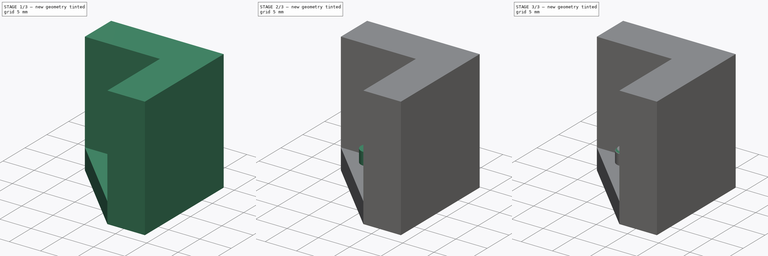
[diagram: build sequence overview — one tinted view per stage of 3, left to right]
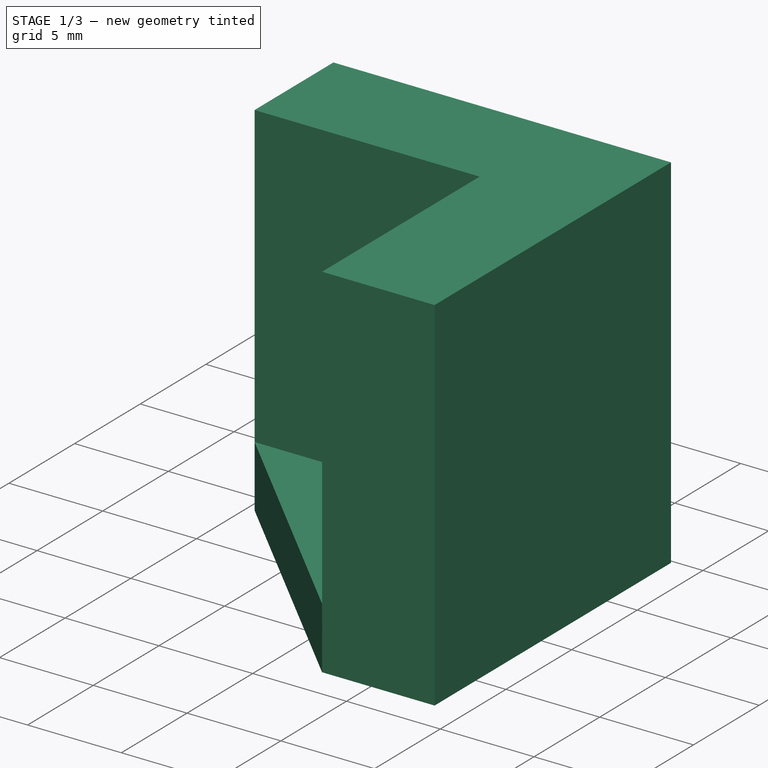
[diagram: stage 1 of 3 — iso view after this stage's code; geometry added in this stage tinted green]
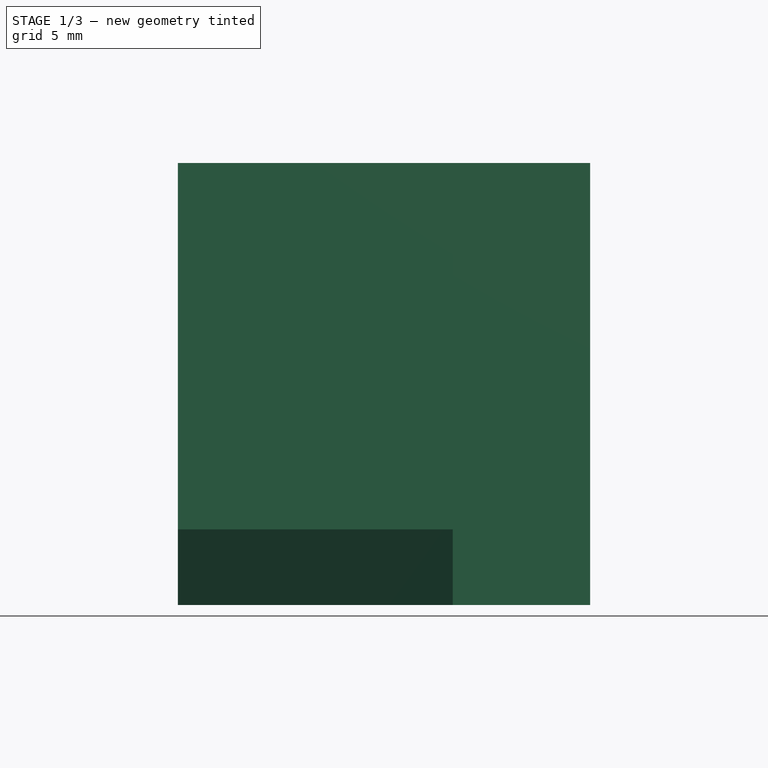
[diagram: stage 1 of 3 — front view after this stage's code; geometry added in this stage tinted green]
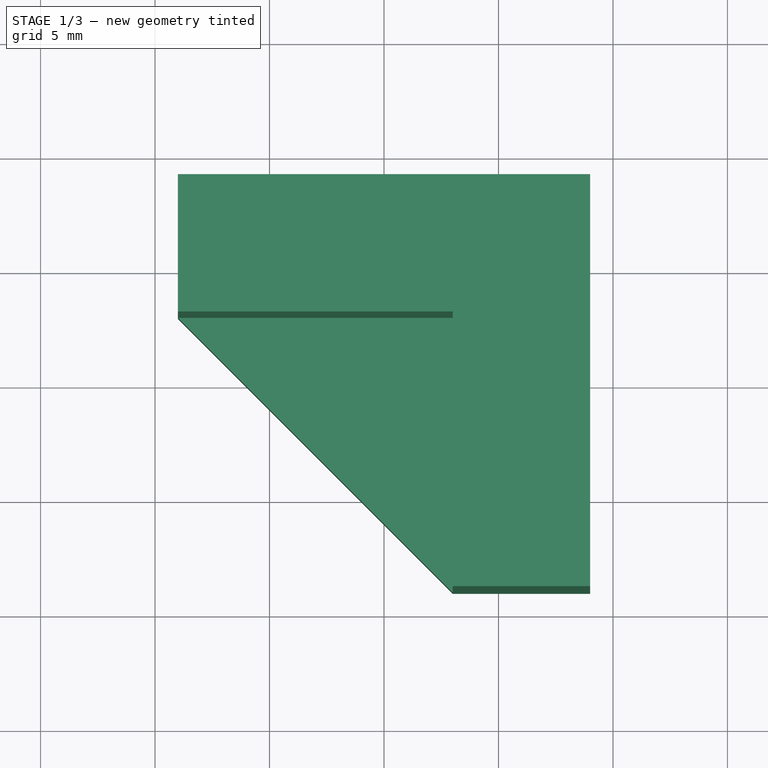
[diagram: stage 1 of 3 — top view after this stage's code; geometry added in this stage tinted green]
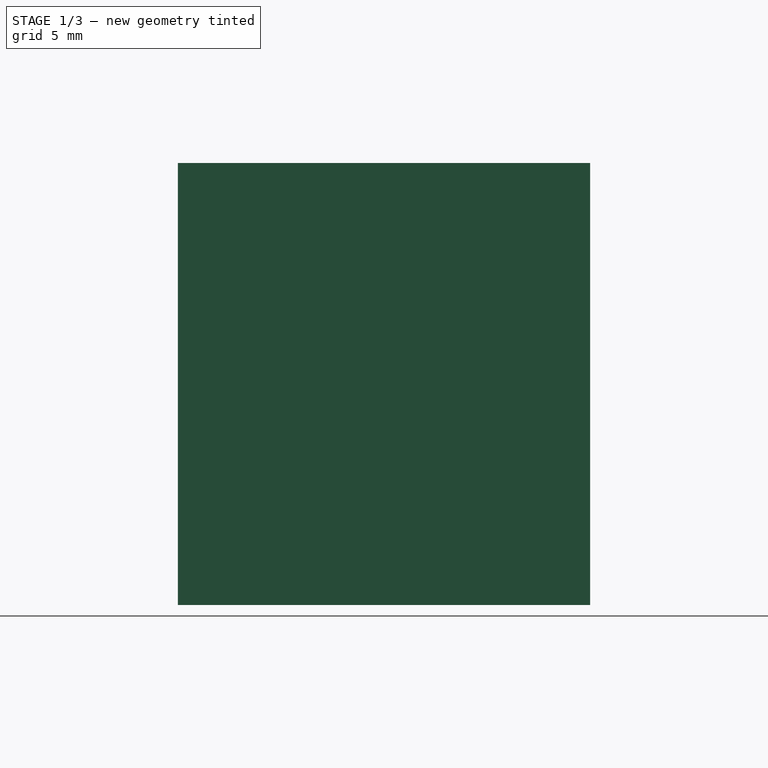
[diagram: stage 1 of 3 — right view after this stage's code; geometry added in this stage tinted green]
FCSTD DOCUMENT  (FreeCAD 0.21R33668 +26 (Git))
Label: magnet_press_jig_top
License: All rights reserved
LicenseURL: https://en.wikipedia.org/wiki/All_rights_reserved
objects: Sketcher::SketchObject×4, PartDesign::Pad×2, PartDesign::Pocket×2, PartDesign::Plane×1, PartDesign::Chamfer×1, PartDesign::Body×1
note: 16 computed .brp shape members not serialized (recipe doc carries the construction recipe); baked Part::Feature solids carry a one-line shape summary decoded from their .brp

FEATURE [Sketcher::SketchObject] Sketch
  FullyConstrained = true
  MapMode = 5
  Support = -> [XY_Plane]
  sketch-geometry (9):
    g0: LineSegment StartX=-9 StartY=3 StartZ=0 EndX=-9 EndY=9 EndZ=0
    g1: LineSegment StartX=-9 StartY=9 StartZ=0 EndX=9 EndY=9 EndZ=0
    g2: LineSegment StartX=9 StartY=9 StartZ=0 EndX=9 EndY=-9 EndZ=0
    g3: LineSegment StartX=9 StartY=-9 StartZ=0 EndX=3 EndY=-9 EndZ=0
    g4: GeomPoint X=0 Y=0 Z=0
    g5: LineSegment StartX=-9 StartY=3 StartZ=0 EndX=3 EndY=-9 EndZ=0
    g6: LineSegment StartX=-9 StartY=9 StartZ=0 EndX=0 EndY=0 EndZ=0
    g7: LineSegment StartX=0 StartY=0 StartZ=0 EndX=9 EndY=9 EndZ=0
    g8: LineSegment StartX=0 StartY=0 StartZ=0 EndX=9 EndY=-9 EndZ=0
  constraints (22):
    c: Coincident(g0,g1)
    c: Coincident(g1,g2)
    c: Coincident(g2,g3)
    c: Horizontal(g1)
    c: Horizontal(g3)
    c: Vertical(g0)
    c: Vertical(g2)
    c: Coincident(g4,g-1)
    c: DistanceX(g1,g1) = 18
    c: Coincident(g0,g5)
    c: Coincident(g3,g5)
    c: Equal(g3,g0)
    c: DistanceX(g3,g3) = 6
    c: Equal(g2,g1)
    c: Coincident(g6,g0)
    c: Coincident(g6,g4)
    c: Coincident(g7,g6)
    c: Coincident(g7,g1)
    c: Equal(g7,g6)
    c: Coincident(g8,g6)
    c: Coincident(g8,g2)
    c: Equal(g8,g7)
FEATURE [PartDesign::Pad] Pad
  Direction = (0,0,1)
  Length = 19.3
  Length2 = 10
  Profile = -> Sketch
  ReferenceAxis = -> Sketch [N_Axis]
  Type = 0
FEATURE [PartDesign::Plane] DatumPlane
  AttachmentOffset = pos=(0,0,3.3) rot=(0,0,1;0rad)
  Length = 60
  MapMode = 5
  Placement = pos=(0,0,3.3) rot=(0,0,1;0rad)
  ResizeMode = 0
  Support = -> [XY_Plane]
  Width = 60
FEATURE [Sketcher::SketchObject] Sketch001
  FullyConstrained = true
  MapMode = 5
  Placement = pos=(0,0,3.3) rot=(0,0,1;0rad)
  Support = -> [DatumPlane]
  sketch-geometry (3):
    g0: LineSegment StartX=-9 StartY=3 StartZ=0 EndX=3 EndY=3 EndZ=0
    g1: LineSegment StartX=3 StartY=3 StartZ=0 EndX=3 EndY=-9 EndZ=0
    g2: LineSegment StartX=3 StartY=-9 StartZ=0 EndX=-9 EndY=3 EndZ=0
  constraints (9):
    c: Horizontal(g0)
    c: Coincident(g1,g0)
    c: Vertical(g1)
    c: Coincident(g2,g1)
    c: Coincident(g2,g0)
    c: DistanceX(g0,g0) = 12
    c: Equal(g0,g1)
    c: DistanceY(g-1,g0) = 3
    c: DistanceX(g-1,g0) = 3
FEATURE [PartDesign::Pocket] Pocket
  BaseFeature = -> Pad
  Direction = (0,0,-1)
  Length = 5
  Length2 = 5
  Profile = -> Sketch001
  ReferenceAxis = -> Sketch001 [N_Axis]
  Reversed = true
  Type = 1
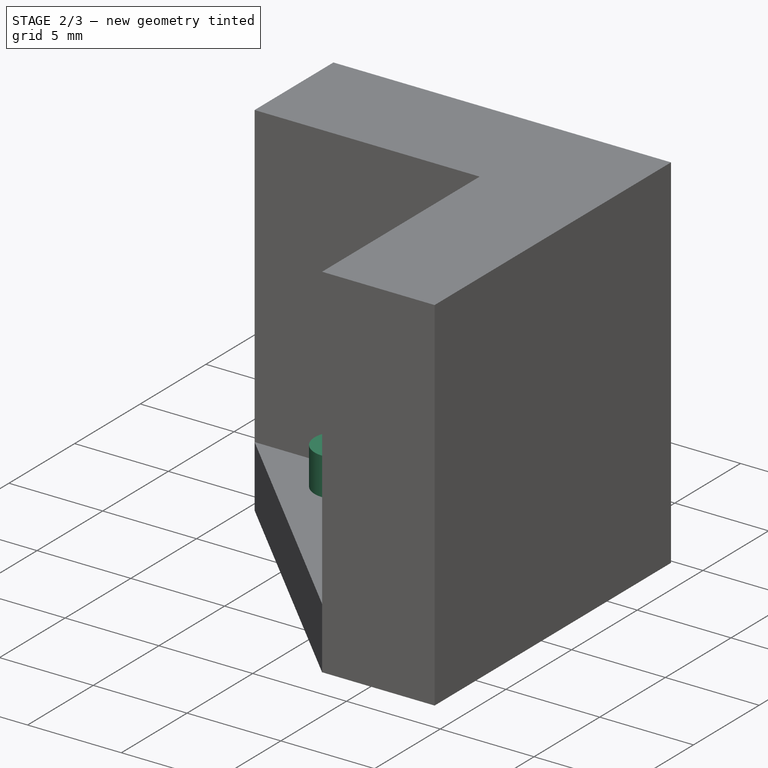
[diagram: stage 2 of 3 — iso view after this stage's code; geometry added in this stage tinted green]
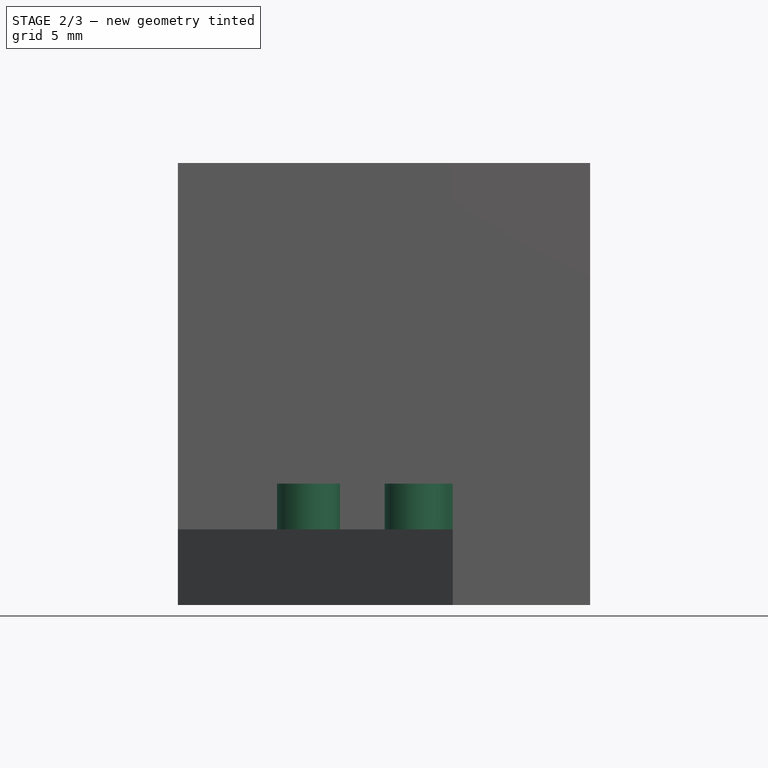
[diagram: stage 2 of 3 — front view after this stage's code; geometry added in this stage tinted green]
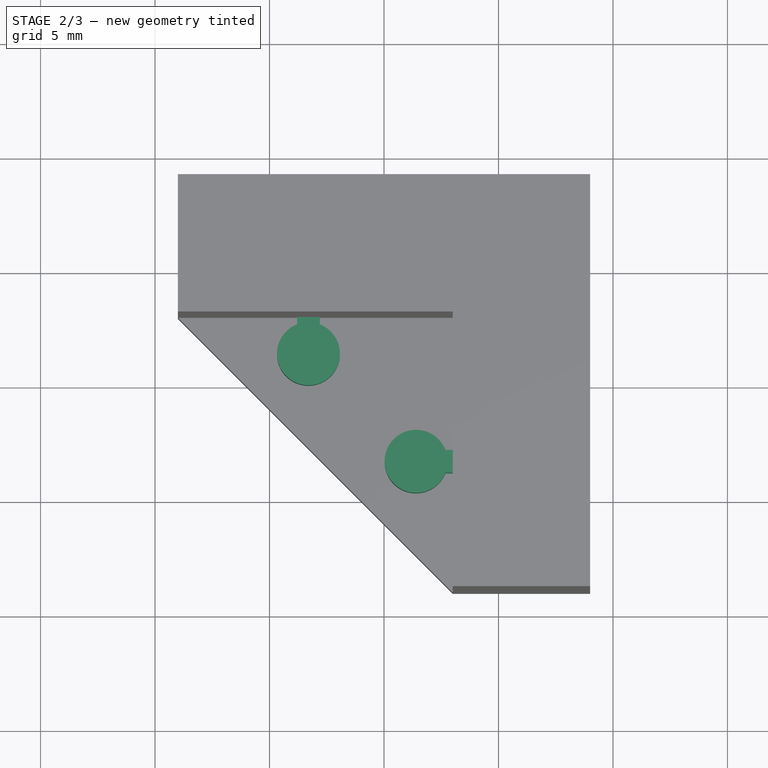
[diagram: stage 2 of 3 — top view after this stage's code; geometry added in this stage tinted green]
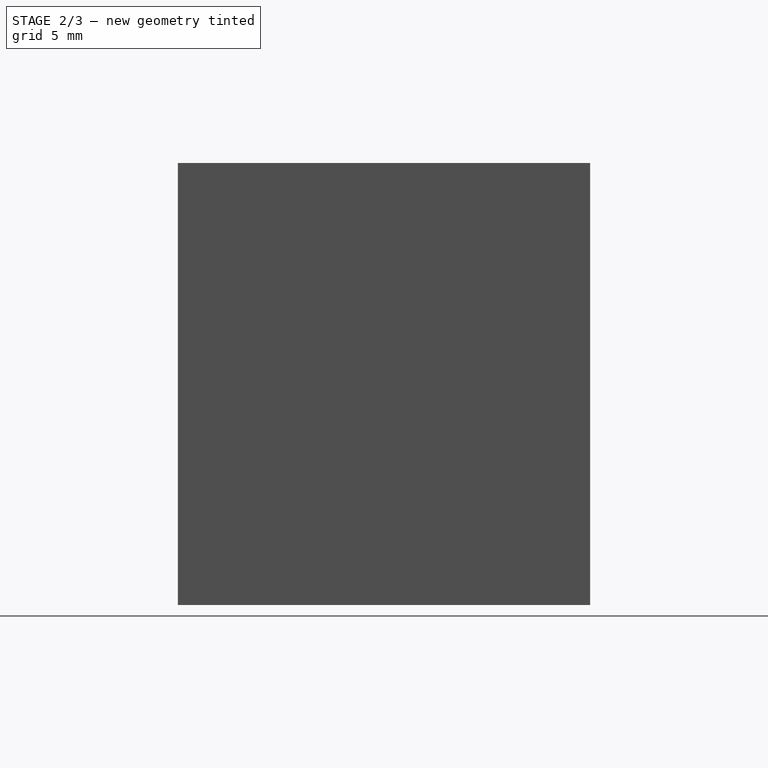
[diagram: stage 2 of 3 — right view after this stage's code; geometry added in this stage tinted green]
FEATURE [Sketcher::SketchObject] Sketch002
  FullyConstrained = true
  MapMode = 5
  Placement = pos=(0,0,3.3) rot=(0,0,1;0rad)
  Support = -> [DatumPlane]
  sketch-geometry (11):
    g0: ArcOfCircle CenterX=-3.3 CenterY=1.4 CenterZ=0 NormalX=0 NormalY=0 NormalZ=1 AngleXU=0 Radius=1.375 StartAngle=1.94296 EndAngle=7.48181
    g1: ArcOfCircle CenterX=1.4 CenterY=-3.3 CenterZ=0 NormalX=0 NormalY=0 NormalZ=1 AngleXU=0 Radius=1.375 StartAngle=0.372169 EndAngle=5.91102
    g2: LineSegment StartX=-3.3 StartY=1.4 StartZ=0 EndX=1.4 EndY=-3.3 EndZ=0
    g3: LineSegment StartX=-0.95 StartY=-0.95 StartZ=0 EndX=-1e-16 EndY=0 EndZ=0
    g4: GeomPoint X=3 Y=3 Z=0
    g5: LineSegment StartX=-3.8 StartY=2.68087 StartZ=0 EndX=-3.8 EndY=3 EndZ=0
    g6: LineSegment StartX=-2.8 StartY=2.68087 StartZ=0 EndX=-2.8 EndY=3 EndZ=0
    g7: LineSegment StartX=-3.8 StartY=3 StartZ=0 EndX=-2.8 EndY=3 EndZ=0
    g8: LineSegment StartX=2.68087 StartY=-2.8 StartZ=0 EndX=3 EndY=-2.8 EndZ=0
    g9: LineSegment StartX=3 StartY=-2.8 StartZ=0 EndX=3 EndY=-3.8 EndZ=0
    g10: LineSegment StartX=3 StartY=-3.8 StartZ=0 EndX=2.68087 EndY=-3.8 EndZ=0
  constraints (32):
    c: Coincident(g2,g0)
    c: Coincident(g2,g1)
    c: Equal(g1,g0)
    c: Angle(g-2,g2) = 0.785398
    c: Coincident(g3,g-1)
    c: Perpendicular(g2,g3)
    c: Symmetric(g0,g1,g3)
    c: Diameter(g1) = 2.75
    c: DistanceX(g3,g4) = 3
    c: DistanceY(g3,g4) = 3
    c: DistanceX(g0,g4) = 6.3
    c: DistanceY(g0,g4) = 1.6
    c: Vertical(g5)
    c: Vertical(g6)
    c: Coincident(g7,g5)
    c: Coincident(g7,g6)
    c: Horizontal(g7)
    c: Horizontal(g6,g4)
    c: Equal(g6,g5)
    c: Coincident(g9,g8)
    c: Vertical(g9)
    c: Coincident(g10,g9)
    c: Horizontal(g8)
    c: Horizontal(g10)
    c: Equal(g8,g10)
    c: Equal(g10,g6)
    c: Vertical(g8,g4)
    c: DistanceY(g9,g9) = 1
    c: Coincident(g0,g6)
    c: Coincident(g0,g5)
    c: Coincident(g1,g10)
    c: Coincident(g1,g8)
FEATURE [PartDesign::Pad] Pad001
  BaseFeature = -> Pocket
  Direction = (0,0,1)
  Length = 2
  Length2 = 10
  Profile = -> Sketch002
  ReferenceAxis = -> Sketch002 [N_Axis]
  Type = 0
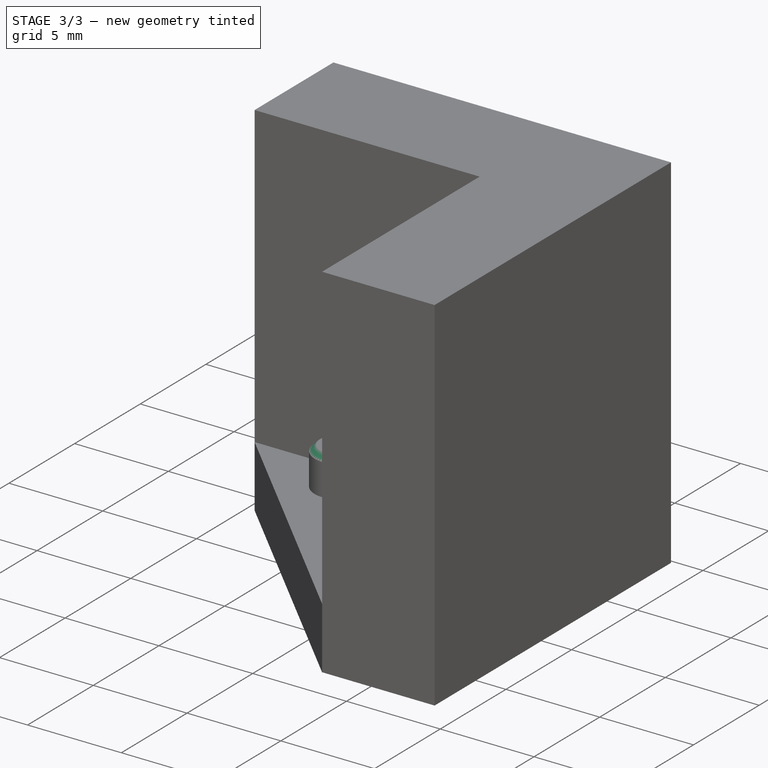
[diagram: stage 3 of 3 — iso view after this stage's code; geometry added in this stage tinted green]
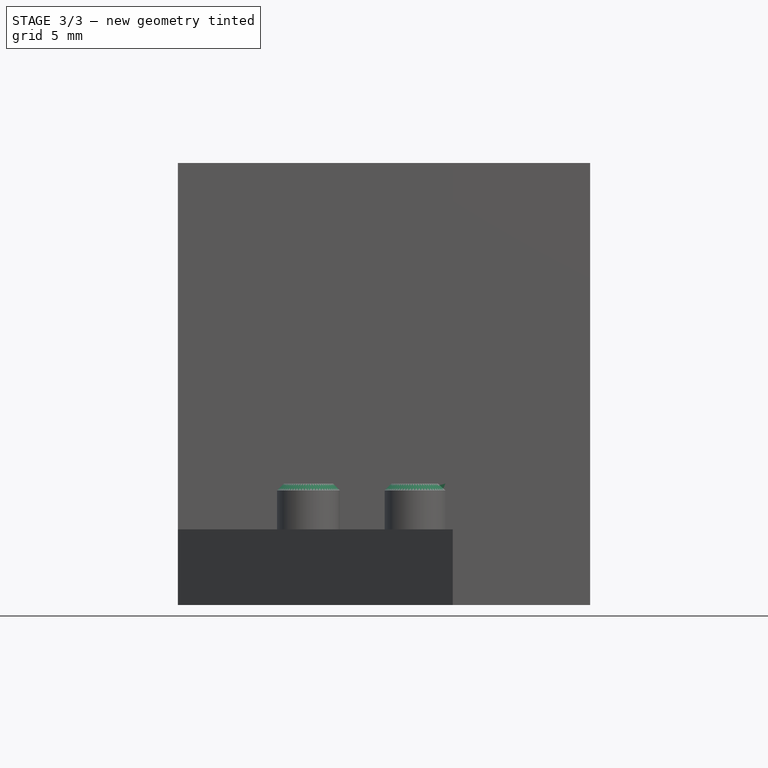
[diagram: stage 3 of 3 — front view after this stage's code; geometry added in this stage tinted green]
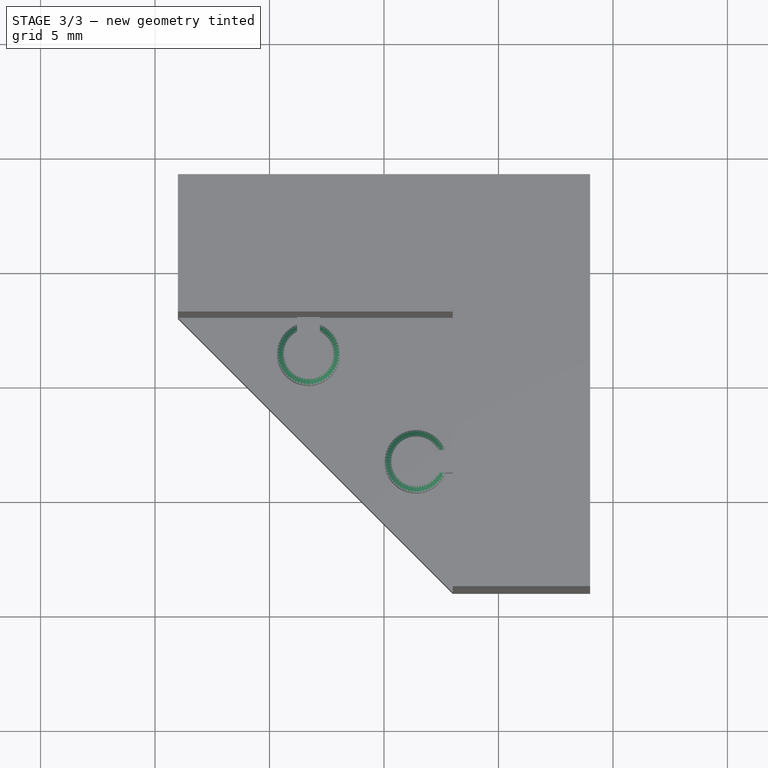
[diagram: stage 3 of 3 — top view after this stage's code; geometry added in this stage tinted green]
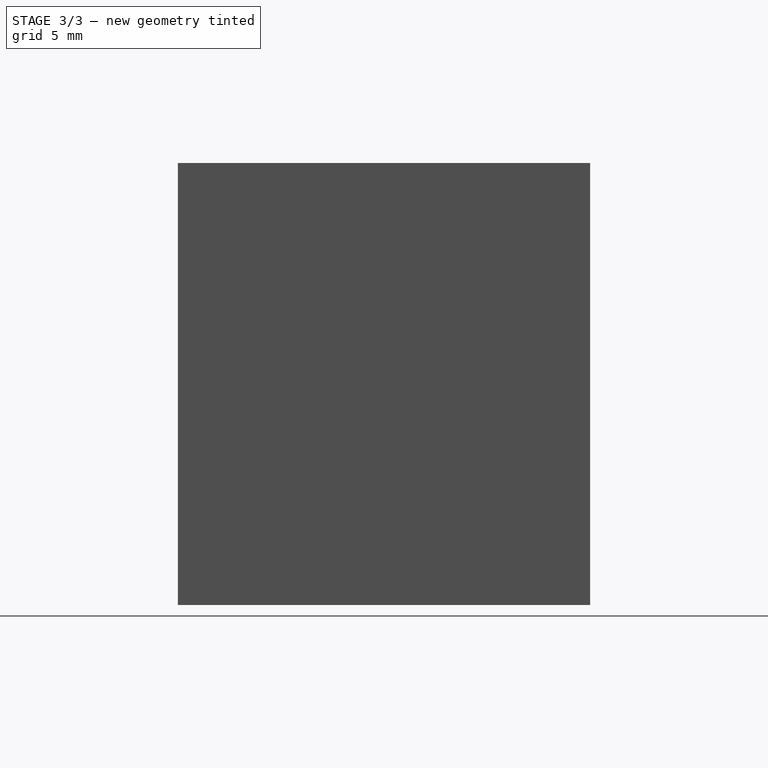
[diagram: stage 3 of 3 — right view after this stage's code; geometry added in this stage tinted green]
FEATURE [Sketcher::SketchObject] Sketch003
  FullyConstrained = true
  MapMode = 5
  Support = -> [XY_Plane]
  sketch-geometry (2):
    g0: Circle CenterX=-0.3 CenterY=-0.3 CenterZ=0 NormalX=0 NormalY=0 NormalZ=1 AngleXU=0 Radius=2.4
    g1: GeomPoint X=3 Y=3 Z=0
  constraints (5):
    c: DistanceY(g-1,g1) = 3
    c: DistanceX(g-1,g1) = 3
    c: DistanceX(g0,g1) = 3.3
    c: DistanceY(g0,g1) = 3.3
    c: Diameter(g0) = 4.8
FEATURE [PartDesign::Pocket] Pocket001
  BaseFeature = -> Pad001
  Direction = (0,0,-1)
  Length = 3
  Length2 = 5
  Profile = -> Sketch003
  ReferenceAxis = -> Sketch003 [N_Axis]
  Reversed = true
  Type = 0
FEATURE [PartDesign::Chamfer] Chamfer
  Angle = 45
  Base = -> Pocket001 [Edge37,Edge48]
  BaseFeature = -> Pocket001
  ChamferType = 0
  FlipDirection = false
  Size = 0.3
  Size2 = 1
  SupportTransform = false
  UseAllEdges = false
FEATURE [PartDesign::Body] Body
  Group = -> [Sketch,Pad,DatumPlane,Sketch001,Pocket,Sketch002,Pad001,Sketch003,Pocket001,Chamfer]
  Origin = -> Origin
  Tip = -> Chamfer
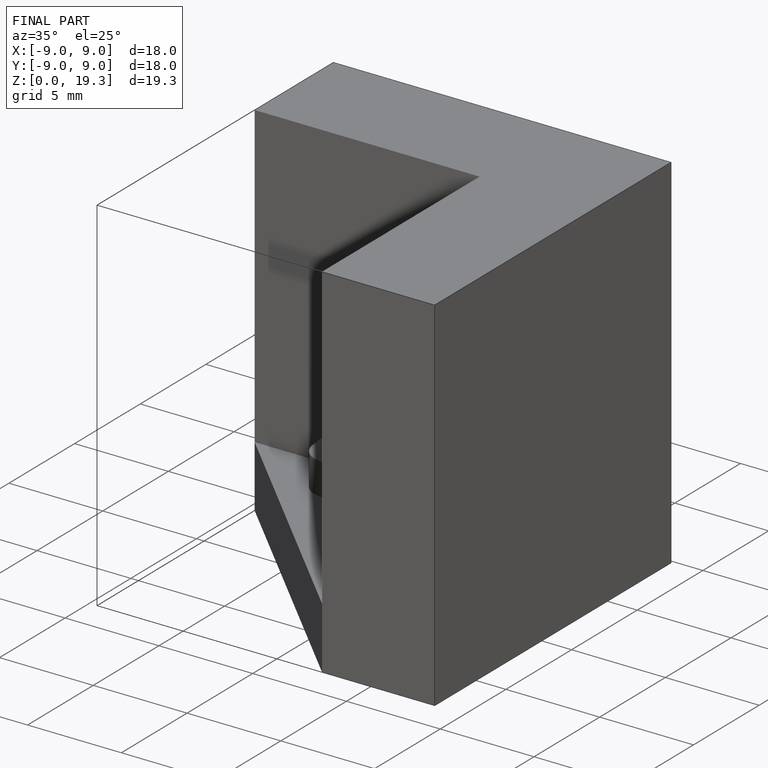
[diagram: finished part — iso view with bounding-box wireframe]
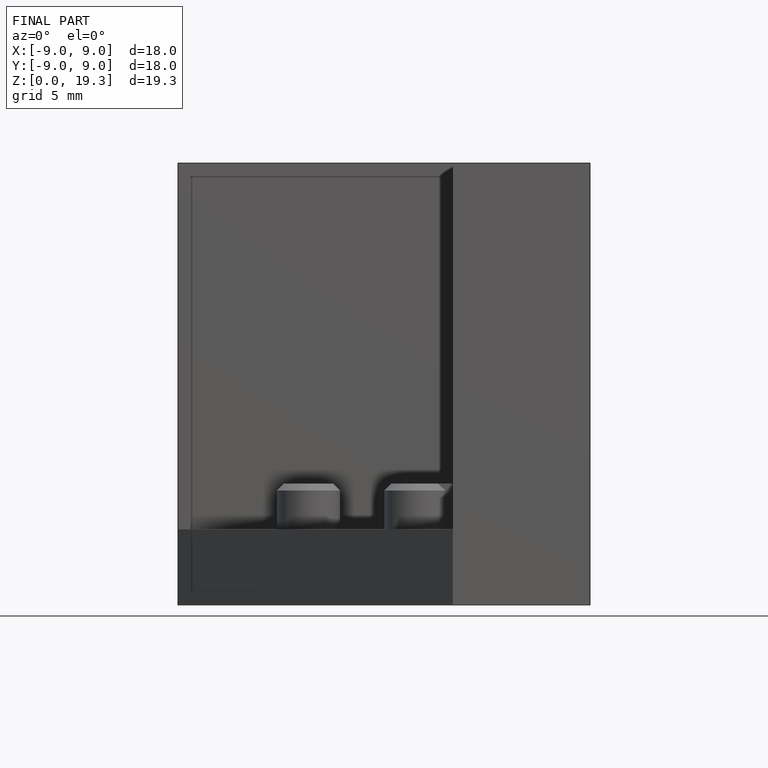
[diagram: finished part — front view with bounding-box wireframe]
